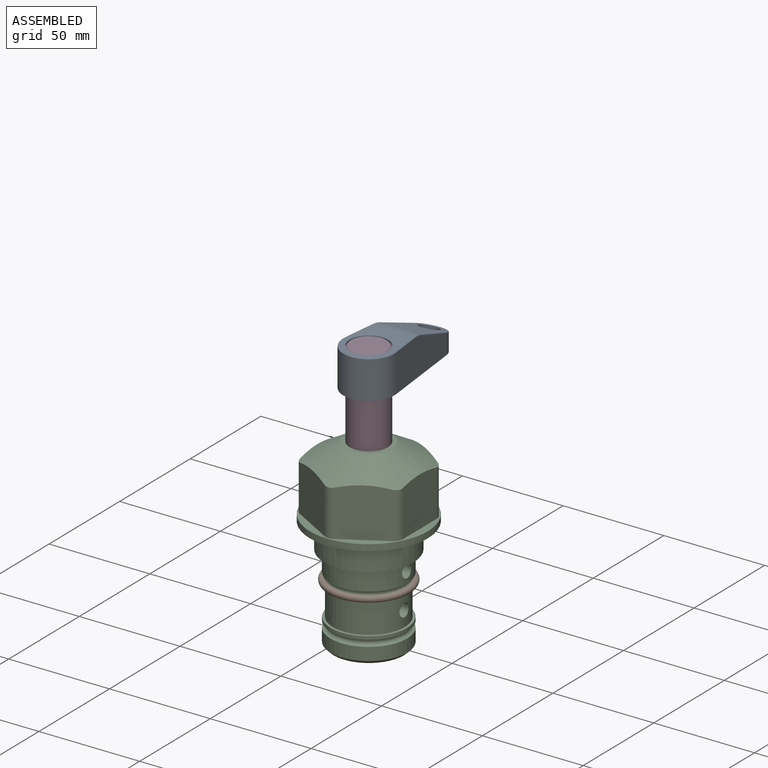
[diagram: assembled view]
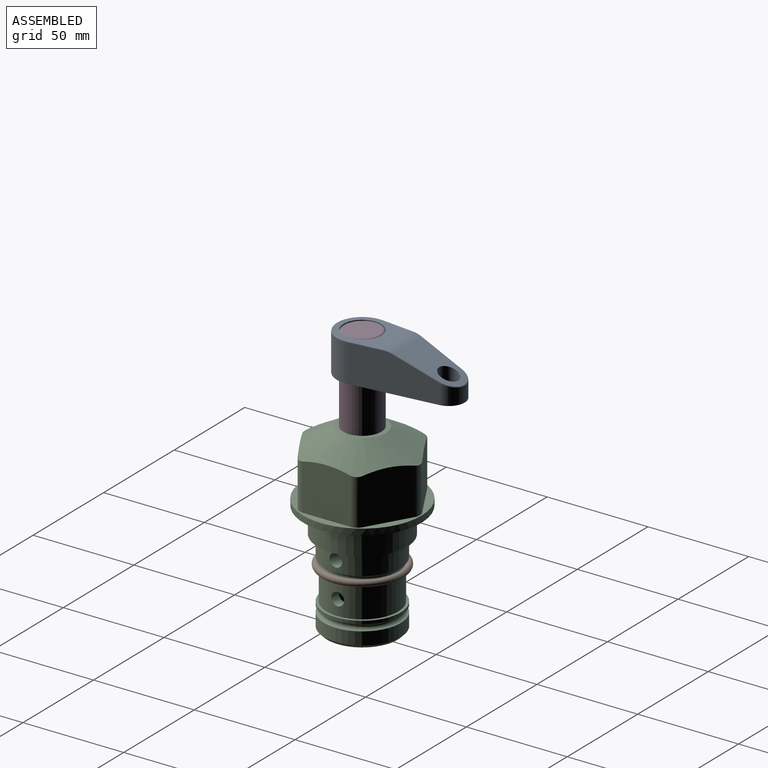
[diagram: assembled view, second angle]
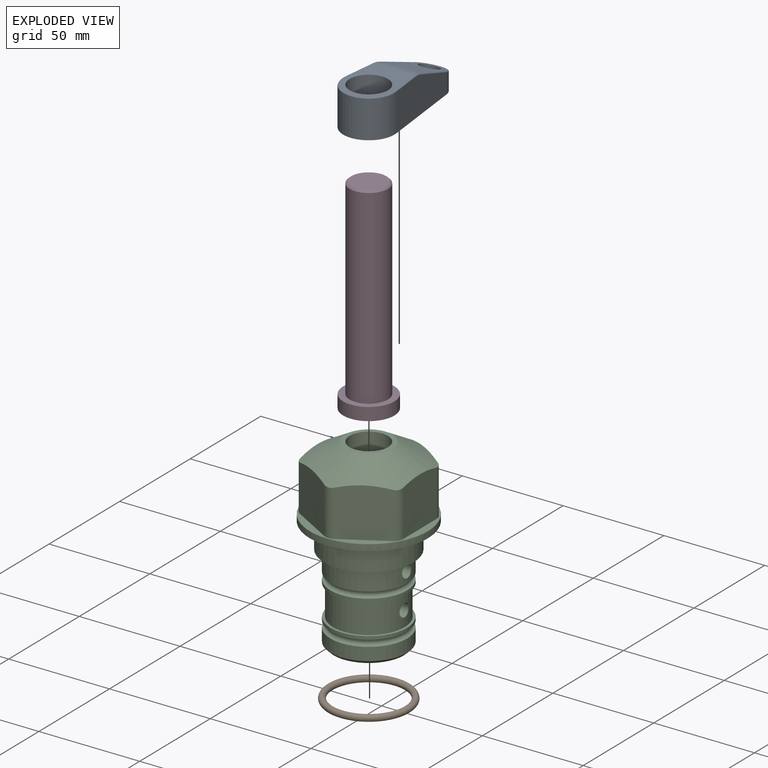
[diagram: exploded view]
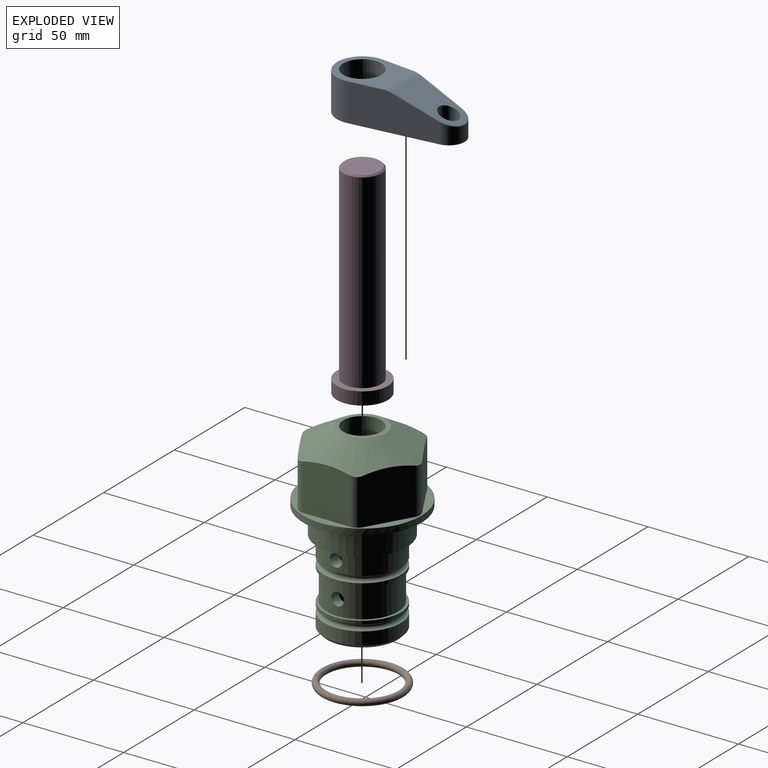
[diagram: exploded view, second angle]
ASSEMBLY  parts=4 mates=3
PART A: 41 faces, bbox 27.5x64.5x19.1 mm
  f0: plane 63.5x25.4mm, normal (0,0,-1), area 561.7mm2, adj f1,f2,f3,f4,f5,f6,f18,f19
  f1: cylinder r=12.7mm len=25.4mm, axis (0,0,-1), area 792.2mm2, adj f0,f2,f4,f12
  f2: plane 42.33x18.54mm, normal (0.99,0.11,0), area 686.4mm2, adj f0,f1,f3,f10,f11,f13
  f3: cylinder r=7.94mm len=15.78mm, axis (0,0,-1), area 193.7mm2, adj f0,f2,f4,f15
  f4: plane 42.33x18.54mm, normal (-0.99,0.11,0), area 686.4mm2, adj f0,f1,f3,f14,f16,f17
  f5: cylinder r=9.53mm len=19.05mm, axis (0,0,-1), area 1140.1mm2, adj f0,f7
  f6: cylinder r=4.76mm len=12.5mm, axis (0,0,-1), area 321.5mm2, adj f0,f8
  f7: plane 29.99x24.38mm, normal (0,0,1), area 349.7mm2, adj f5,f9,f10,f12,f14
  f8: plane 28.32x19.62mm, normal (0,0.34,0.94), area 400.8mm2, adj f6,f9,f13,f15,f17
  f9: cylinder r=12.7mm len=20.56mm, axis (-1,0,0), area 89.1mm2, adj f7,f8,f11,f16
  f10: cylinder r=0.51mm len=16.5mm, axis (0.11,-0.99,0), area 13.2mm2, adj f2,f7,f11,f12
  f11: bspline ~4.35x1.24mm, area 3.5mm2, adj f2,f9,f10,f13
  f12: torus R=12.19mm, axis (0,0,1), area 33.6mm2, adj f1,f7,f10,f14
  f13: cylinder r=0.51mm len=21.84mm, axis (0.1,-0.93,0.34), area 18.1mm2, adj f2,f8,f11,f15
  f14: cylinder r=0.51mm len=16.5mm, axis (0.11,0.99,0), area 13.2mm2, adj f4,f7,f12,f16
  f15: bspline ~15.78x7.05mm, area 15.7mm2, adj f3,f8,f13,f17
  f16: bspline ~4.35x1.24mm, area 3.5mm2, adj f4,f9,f14,f17
  f17: cylinder r=0.51mm len=21.84mm, axis (0.1,0.93,-0.34), area 18.1mm2, adj f4,f8,f15,f16
  f18: plane 21.6x14.29mm, normal (-0.99,-0.11,0), area 268.8mm2, adj f0,f25,f27,f31,f33,f35
  f19: plane 21.6x14.29mm, normal (0.99,-0.11,0), area 268.8mm2, adj f0,f26,f28,f34,f36,f38
  f20: cylinder r=12.7mm len=14.29mm, axis (0,0,-1), area 173.4mm2, adj f0,f25,f26,f30
  f21: cylinder r=7.94mm len=9.14mm, axis (0,0,-1), area 64.6mm2, adj f0,f27,f28,f39
  f22: plane 13.14x5.11mm, normal (0,0,-1), area 50.1mm2, adj f24,f30,f31,f34
  f23: plane 13.77x11.39mm, normal (0,-0.34,-0.94), area 138.7mm2, adj f24,f35,f38,f39
  f24: cylinder r=9.53mm len=11.99mm, axis (-1,0,0), area 38.9mm2, adj f22,f23,f33,f36
  f25: cylinder r=1.59mm len=14.29mm, axis (0,0,-1), area 49mm2, adj f0,f18,f20,f29
  f26: cylinder r=1.59mm len=14.29mm, axis (0,0,-1), area 49mm2, adj f0,f19,f20,f32
  f27: cylinder r=1.59mm len=8.8mm, axis (0,0,-1), area 26.7mm2, adj f0,f18,f21,f37
  f28: cylinder r=1.59mm len=8.8mm, axis (0,0,-1), area 26.7mm2, adj f0,f19,f21,f40
  f29: sphere r=1.59mm, area 5.4mm2, adj f25,f30,f31
  f30: torus R=14.29mm, axis (0,0,1), area 31.6mm2, adj f20,f22,f29,f32
  f31: cylinder r=1.59mm len=5.29mm, axis (-0.11,0.99,0), area 12.8mm2, adj f18,f22,f29,f33
  f32: sphere r=1.59mm, area 5.4mm2, adj f26,f30,f34
  f33: bspline ~3.28x2.07mm, area 7.7mm2, adj f18,f24,f31,f35
  f34: cylinder r=1.59mm len=5.29mm, axis (0.11,0.99,0), area 12.8mm2, adj f19,f22,f32,f36
  f35: cylinder r=1.59mm len=14.16mm, axis (0.1,-0.93,0.34), area 35.9mm2, adj f18,f23,f33,f37
  f36: bspline ~3.28x2.07mm, area 7.7mm2, adj f19,f24,f34,f38
  f37: sphere r=1.59mm, area 3.6mm2, adj f27,f35,f39
  f38: cylinder r=1.59mm len=14.16mm, axis (0.1,0.93,-0.34), area 35.9mm2, adj f19,f23,f36,f40
  f39: bspline ~8.31x1.84mm, area 15.3mm2, adj f21,f23,f37,f40
  f40: sphere r=1.59mm, area 3.6mm2, adj f28,f38,f39
PART B: 1 faces, bbox 44.7x44.7x3.2 mm
  f0: torus R=19.05mm, axis (0,0,1), area 1193.9mm2
PART C: 36 faces, bbox 58.7x58.7x91.2 mm
  f0: cylinder r=17.78mm len=35.56mm, axis (0,0,1), area 1670.8mm2, adj f23,f24,f31
  f1: cylinder r=19.05mm len=38.1mm, axis (0,0,1), area 1191.9mm2, adj f26,f27,f30
  f2: plane 58.66x58.66mm, normal (0,0,-1), area 1150.6mm2, adj f3,f28
  f3: cylinder r=29.33mm len=58.66mm, axis (0,0,-1), area 585.1mm2, adj f2,f4
  f4: plane 58.66x58.66mm, normal (0,0,1), area 475.9mm2, adj f3,f5,f6,f7,f8,f9,f10,f11
  f5: plane 24.5x20.32mm, normal (-0.5,0.87,0), area 562.8mm2, adj f4,f15,f16,f17
  f6: plane 24.5x20.32mm, normal (0.5,0.87,0), area 562.8mm2, adj f4,f14,f15,f17
  f7: plane 24.5x23.48mm, normal (1,0,0), area 562.8mm2, adj f4,f13,f14,f17
  f8: plane 24.5x20.32mm, normal (0.5,-0.87,0), area 562.8mm2, adj f4,f12,f13,f17
  f9: plane 24.5x20.32mm, normal (-0.5,-0.87,0), area 562.8mm2, adj f4,f11,f12,f17
  f10: plane 24.5x23.48mm, normal (-1,0,0), area 562.8mm2, adj f4,f11,f16,f17
  f11: cylinder r=5.08mm len=23.01mm, axis (0,0,-1), area 121.2mm2, adj f4,f9,f10,f17
  f12: cylinder r=5.08mm len=23.01mm, axis (0,0,-1), area 121.2mm2, adj f4,f8,f9,f17
  f13: cylinder r=5.08mm len=23.01mm, axis (0,0,-1), area 121.2mm2, adj f4,f7,f8,f17
  f14: cylinder r=5.08mm len=23.01mm, axis (0,0,-1), area 121.2mm2, adj f4,f6,f7,f17
  f15: cylinder r=5.08mm len=23.01mm, axis (0,0,-1), area 121.2mm2, adj f4,f5,f6,f17
  f16: cylinder r=5.08mm len=23.01mm, axis (0,0,-1), area 121.2mm2, adj f4,f5,f10,f17
  f17: cone r=11.73mm half-angle=60deg, axis (0,0,-1), area 2071.8mm2, adj f5,f6,f7,f8,f9,f10,f11,f12
  f18: plane 23.46x23.46mm, normal (0,0,1), area 147.4mm2, adj f17,f35
  f19: plane 34.93x34.93mm, normal (0,0,-1), area 958mm2, adj f29
  f20: cylinder r=19.05mm len=38.1mm, axis (0,0,1), area 760.1mm2, adj f21,f29
  f21: torus R=19.05mm, axis (0,0,1), area 565.3mm2, adj f20,f22
  f22: cylinder r=19.05mm len=38.1mm, axis (0,0,1), area 190mm2, adj f21,f23
  f23: plane 38.1x38.1mm, normal (0,0,1), area 146.9mm2, adj f0,f22
  f24: plane 38.1x38.1mm, normal (0,0,-1), area 146.9mm2, adj f0,f25
  f25: cylinder r=19.05mm len=38.1mm, axis (0,0,1), area 190mm2, adj f24,f26
  f26: torus R=19.05mm, axis (0,0,1), area 565.3mm2, adj f1,f25
  f27: plane 44.45x44.45mm, normal (0,0,-1), area 411.7mm2, adj f1,f28
  f28: cylinder r=22.23mm len=44.45mm, axis (0,0,1), area 1773.5mm2, adj f2,f27
  f29: cone r=19.05mm half-angle=45deg, axis (0,0,1), area 257.5mm2, adj f19,f20
  f30: cylinder r=3.17mm len=6.75mm, axis (-1,0,0), area 128mm2, adj f1,f33
  f31: cylinder r=3.17mm len=6.35mm, axis (-1,0,0), area 102.5mm2, adj f0,f33
  f32: plane 25.4x25.4mm, normal (0,0,1), area 506.7mm2, adj f33
  f33: cylinder r=12.7mm len=66.42mm, axis (0,0,-1), area 5236.2mm2, adj f30,f31,f32,f34
  f34: cone r=9.53mm half-angle=30deg, axis (0,0,-1), area 443.4mm2, adj f33,f35
  f35: cylinder r=9.53mm len=19.05mm, axis (0,0,-1), area 849mm2, adj f18,f34
PART D: 6 faces, bbox 25.4x25.4x101.6 mm
  f0: plane 17.46x17.46mm, normal (0,0,1), area 239.5mm2, adj f5
  f1: plane 25.4x25.4mm, normal (0,0,-1), area 506.7mm2, adj f2
  f2: cylinder r=12.7mm len=25.4mm, axis (0,0,1), area 506.7mm2, adj f1,f3
  f3: plane 25.4x25.4mm, normal (0,0,1), area 221.7mm2, adj f2,f4
  f4: cylinder r=9.53mm len=94.46mm, axis (0,0,1), area 5653mm2, adj f3,f5
  f5: cone r=8.73mm half-angle=45deg, axis (0,0,-1), area 64.4mm2, adj f0,f4
PLACE A t=(-3.51,-54.03,61.08)mm
PLACE B t=(-3.51,-54.03,-0.15)mm
PLACE C t=(-3.51,-54.03,1.43)mm
PLACE D t=(-3.51,-54.03,6.47)mm
MATE fastened D.f2 <-> C.f0  axis (0,0,1) through (-3.51,-54.03,32.11)mm
MATE fastened B.f0 <-> C.f0  axis (0,0,1) through (-3.51,-54.03,-24.66)mm
MATE fastened A.f1 <-> D.f2  axis (0,0,-1) through (-3.51,-54.03,80.13)mm
